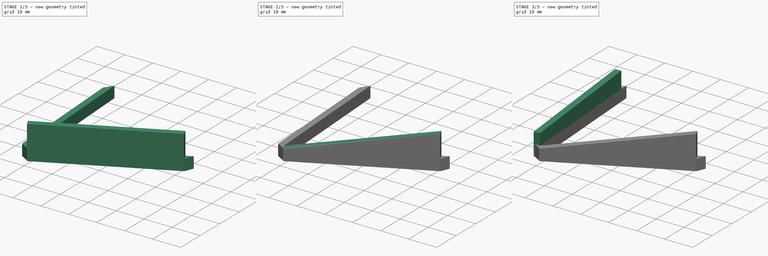
[diagram: build sequence overview — one tinted view per stage of 3, left to right]
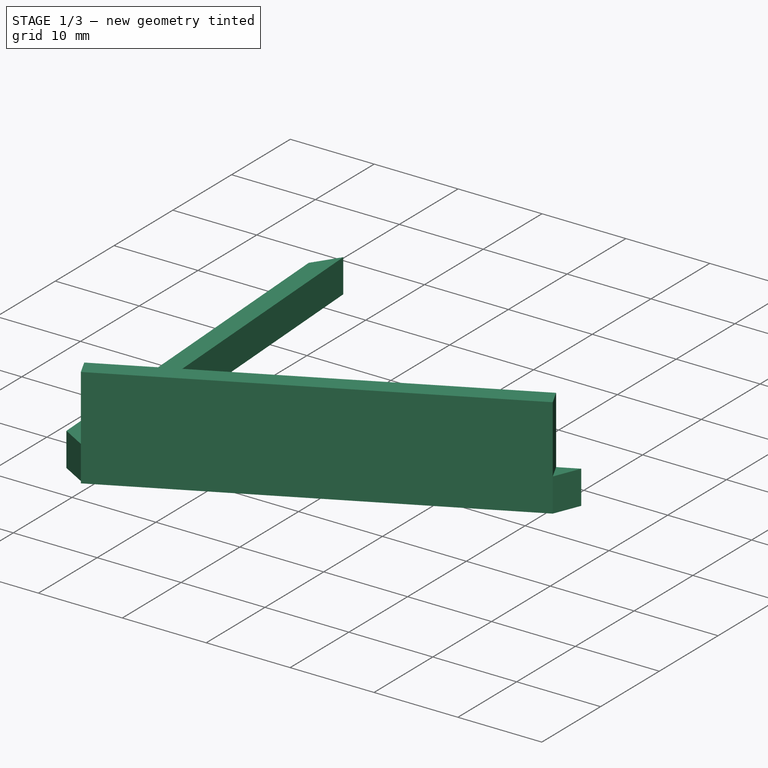
[diagram: stage 1 of 3 — iso view after this stage's code; geometry added in this stage tinted green]
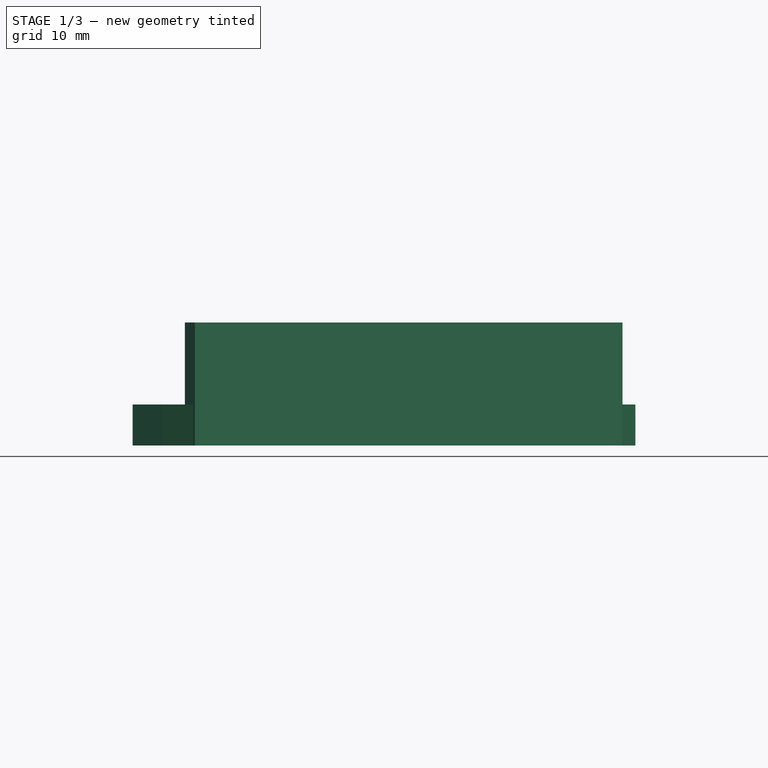
[diagram: stage 1 of 3 — front view after this stage's code; geometry added in this stage tinted green]
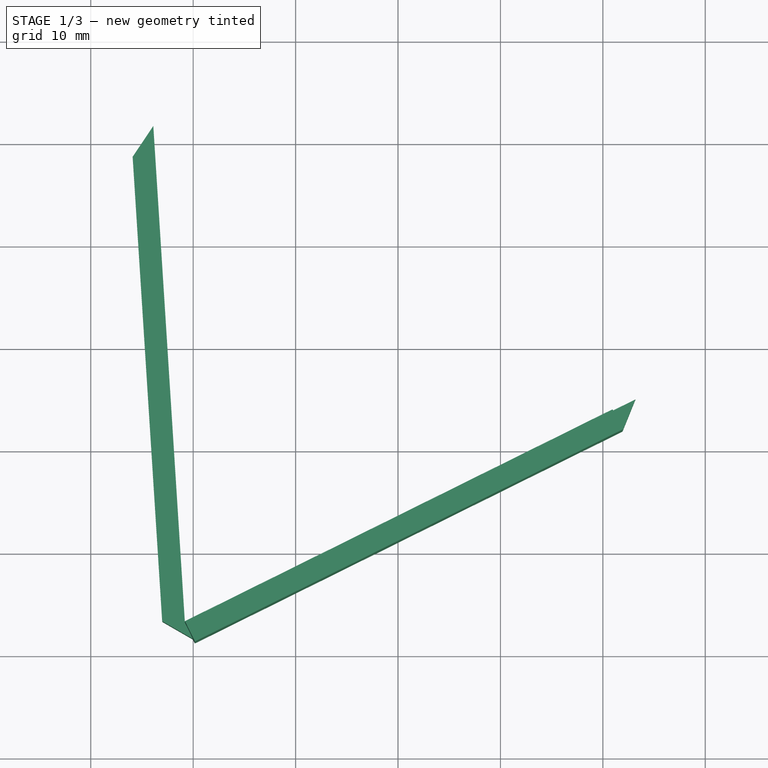
[diagram: stage 1 of 3 — top view after this stage's code; geometry added in this stage tinted green]
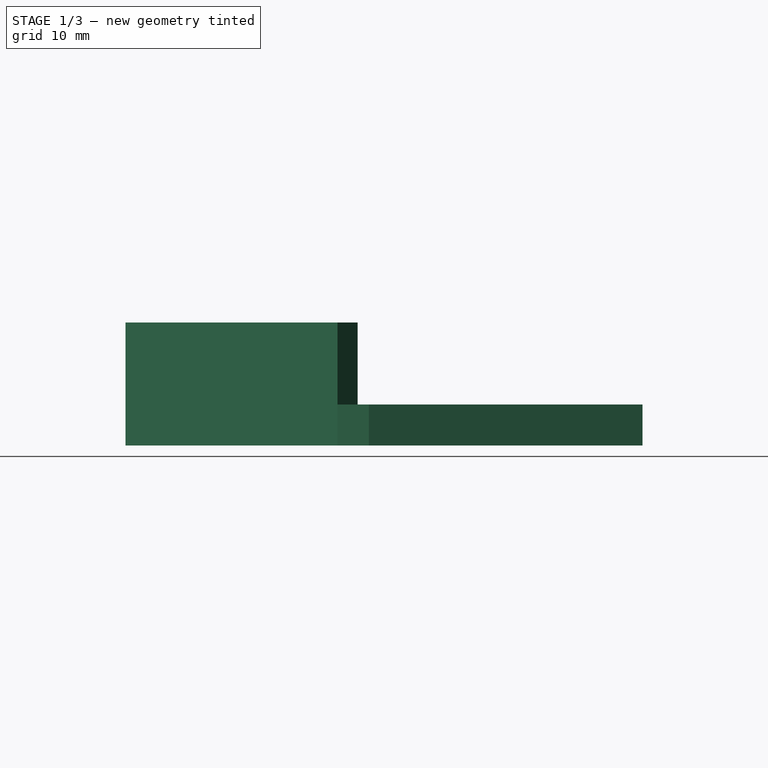
[diagram: stage 1 of 3 — right view after this stage's code; geometry added in this stage tinted green]
FCSTD DOCUMENT  (FreeCAD 0.20R29410 (Git))
Label: wheel_gear_outer_wedge
License: All rights reserved
LicenseURL: http://en.wikipedia.org/wiki/All_rights_reserved
objects: Sketcher::SketchObject×5, PartDesign::Pad×3, PartDesign::Pocket×2, Image::ImagePlane×1, PartDesign::Body×1
note: 16 computed .brp shape members not serialized (recipe doc carries the construction recipe); baked Part::Feature solids carry a one-line shape summary decoded from their .brp

FEATURE [Sketcher::SketchObject] Sketch
  FullyConstrained = true
  MapMode = 5
  Support = -> [XY_Plane]
  sketch-geometry (54):
    g0: LineSegment StartX=65.4968 StartY=-54.9583 StartZ=0 EndX=85.5 EndY=-1.279e-13 EndZ=0
    g1: LineSegment StartX=85.5 StartY=-1.279e-13 StartZ=0 EndX=65.4968 EndY=54.9583 EndZ=0
    g2: LineSegment StartX=65.4968 StartY=54.9583 StartZ=0 EndX=14.8469 EndY=84.2011 EndZ=0
    g3: LineSegment StartX=14.8469 StartY=84.2011 StartZ=0 EndX=-42.75 EndY=74.0452 EndZ=0
    g4: LineSegment StartX=-42.75 StartY=74.0452 StartZ=0 EndX=-80.3437 EndY=29.2427 EndZ=0
    g5: LineSegment StartX=-80.3437 StartY=29.2427 StartZ=0 EndX=-80.3437 EndY=-29.2427 EndZ=0
    g6: LineSegment StartX=-80.3437 StartY=-29.2427 StartZ=0 EndX=-42.75 EndY=-74.0452 EndZ=0
    g7: LineSegment StartX=-42.75 StartY=-74.0452 StartZ=0 EndX=14.8469 EndY=-84.2011 EndZ=0
    g8: LineSegment StartX=14.8469 StartY=-84.2011 StartZ=0 EndX=65.4968 EndY=-54.9583 EndZ=0
    g9: Circle CenterX=0 CenterY=0 CenterZ=0 NormalX=0 NormalY=0 NormalZ=1 AngleXU=0 Radius=85.5
    g10: LineSegment StartX=22.1582 StartY=-3.90708 StartZ=0 EndX=22.1582 EndY=3.90708 EndZ=0
    g11: LineSegment StartX=22.1582 StartY=3.90708 StartZ=0 EndX=19.4856 EndY=11.25 EndZ=0
    g12: LineSegment StartX=19.4856 StartY=11.25 StartZ=0 EndX=14.4627 EndY=17.236 EndZ=0
    g13: LineSegment StartX=14.4627 StartY=17.236 StartZ=0 EndX=7.69545 EndY=21.1431 EndZ=0
    g14: LineSegment StartX=7.69545 StartY=21.1431 StartZ=0 EndX=-5.95e-14 EndY=22.5 EndZ=0
    g15: LineSegment StartX=-5.95e-14 StartY=22.5 StartZ=0 EndX=-7.69545 EndY=21.1431 EndZ=0
    g16: LineSegment StartX=-7.69545 StartY=21.1431 StartZ=0 EndX=-14.4627 EndY=17.236 EndZ=0
    g17: LineSegment StartX=-14.4627 StartY=17.236 StartZ=0 EndX=-19.4856 EndY=11.25 EndZ=0
    g18: LineSegment StartX=-19.4856 StartY=11.25 StartZ=0 EndX=-22.1582 EndY=3.90708 EndZ=0
    g19: LineSegment StartX=-22.1582 StartY=3.90708 StartZ=0 EndX=-22.1582 EndY=-3.90708 EndZ=0
    g20: LineSegment StartX=-22.1582 StartY=-3.90708 StartZ=0 EndX=-19.4856 EndY=-11.25 EndZ=0
    g21: LineSegment StartX=-19.4856 StartY=-11.25 StartZ=0 EndX=-14.4627 EndY=-17.236 EndZ=0
    g22: LineSegment StartX=-14.4627 StartY=-17.236 StartZ=0 EndX=-7.69545 EndY=-21.1431 EndZ=0
    g23: LineSegment StartX=-7.69545 StartY=-21.1431 StartZ=0 EndX=1.33e-14 EndY=-22.5 EndZ=0
    g24: LineSegment StartX=1.29e-14 StartY=-22.5 StartZ=0 EndX=7.69545 EndY=-21.1431 EndZ=0
    g25: LineSegment StartX=7.69545 StartY=-21.1431 StartZ=0 EndX=14.4627 EndY=-17.236 EndZ=0
    g26: LineSegment StartX=14.4627 StartY=-17.236 StartZ=0 EndX=19.4856 EndY=-11.25 EndZ=0
    g27: LineSegment StartX=19.4856 StartY=-11.25 StartZ=0 EndX=22.1582 EndY=-3.90708 EndZ=0
    g28: Circle CenterX=0 CenterY=0 CenterZ=0 NormalX=0 NormalY=0 NormalZ=1 AngleXU=0 Radius=22.5
    g29: LineSegment StartX=14.4627 StartY=17.236 StartZ=0 EndX=85.5 EndY=-1.279e-13 EndZ=0
    g30: LineSegment StartX=14.8469 StartY=84.2011 StartZ=0 EndX=19.4856 EndY=11.25 EndZ=0
    g31: LineSegment StartX=22.1582 StartY=3.90708 StartZ=0 EndX=65.4968 EndY=-54.9583 EndZ=0
    g32: LineSegment StartX=22.1582 StartY=-3.90708 StartZ=0 EndX=65.4968 EndY=54.9583 EndZ=0
    g33: LineSegment StartX=-5.95e-14 StartY=22.5 StartZ=0 EndX=65.4968 EndY=54.9583 EndZ=0
    g34: LineSegment StartX=-42.75 StartY=74.0452 StartZ=0 EndX=7.69545 EndY=21.1431 EndZ=0
    g35: LineSegment StartX=14.4627 StartY=-17.236 StartZ=0 EndX=85.5 EndY=-1.279e-13 EndZ=0
    g36: LineSegment StartX=19.4856 StartY=-11.25 StartZ=0 EndX=14.8469 EndY=-84.2011 EndZ=0
    g37: LineSegment StartX=7.69545 StartY=-21.1431 StartZ=0 EndX=-42.75 EndY=-74.0452 EndZ=0
    g38: LineSegment StartX=1.29e-14 StartY=-22.5 StartZ=0 EndX=65.4968 EndY=-54.9583 EndZ=0
    g39: LineSegment StartX=-7.69545 StartY=-21.1431 StartZ=0 EndX=-80.3437 EndY=-29.2427 EndZ=0
    g40: LineSegment StartX=-14.4627 StartY=-17.236 StartZ=0 EndX=14.8469 EndY=-84.2011 EndZ=0
    g41: LineSegment StartX=-14.4627 StartY=17.236 StartZ=0 EndX=14.8469 EndY=84.2011 EndZ=0
    g42: LineSegment StartX=-7.69545 StartY=21.1431 StartZ=0 EndX=-80.3437 EndY=29.2427 EndZ=0
    g43: LineSegment StartX=-22.1582 StartY=3.90708 StartZ=0 EndX=-42.75 EndY=74.0452 EndZ=0
    g44: LineSegment StartX=-19.4856 StartY=-11.25 StartZ=0 EndX=-80.3437 EndY=29.2427 EndZ=0
    g45: LineSegment StartX=-22.1582 StartY=-3.90708 StartZ=0 EndX=-42.75 EndY=-74.0452 EndZ=0
    g46: LineSegment StartX=-19.4856 StartY=11.25 StartZ=0 EndX=-80.3437 EndY=-29.2427 EndZ=0
    g47: LineSegment StartX=19.1897 StartY=33.2375 StartZ=0 EndX=63.1687 EndY=55.0323 EndZ=0
    g48: LineSegment StartX=16.1055 StartY=81.7424 StartZ=0 EndX=19.1897 EndY=33.2375 EndZ=0
    g49: LineSegment StartX=16.9769 StartY=33.3686 StartZ=0 EndX=14.0922 EndY=78.7357 EndZ=0
    g50: LineSegment StartX=20.4096 StartY=31.3867 StartZ=0 EndX=61.9231 EndY=51.9597 EndZ=0
    g51: LineSegment StartX=16.9769 StartY=33.3686 StartZ=0 EndX=20.4096 EndY=31.3867 EndZ=0
    g52: LineSegment StartX=14.0922 StartY=78.7357 StartZ=0 EndX=16.1055 EndY=81.7424 EndZ=0
    g53: LineSegment StartX=63.1687 StartY=55.0323 StartZ=0 EndX=61.9231 EndY=51.9597 EndZ=0
  constraints (119):
    c: Coincident(g0,g1)
    c: Coincident(g1,g2)
    c: Coincident(g2,g3)
    c: Coincident(g3,g4)
    c: Coincident(g4,g5)
    c: Coincident(g5,g6)
    c: Coincident(g6,g7)
    c: Coincident(g7,g8)
    c: Coincident(g8,g0)
    c: Equal(g0, g1-g8) x8
    c: PointOnObject(g0,g9)
    c: PointOnObject(g1,g9)
    c: PointOnObject(g2,g9)
    c: PointOnObject(g3,g9)
    c: PointOnObject(g4,g9)
    c: PointOnObject(g5,g9)
    c: PointOnObject(g6,g9)
    c: PointOnObject(g7,g9)
    c: PointOnObject(g8,g9)
    c: Radius(g9) = 85.5
    c: Coincident(g9,g-1)
    c: Vertical(g5)
    c: Coincident(g10,g11)
    c: Coincident(g11,g12)
    c: Coincident(g12,g13)
    c: Coincident(g13,g14)
    c: Coincident(g14,g15)
    c: Coincident(g15,g16)
    c: Coincident(g16,g17)
    c: Coincident(g17,g18)
    c: Coincident(g18,g19)
    c: Coincident(g19,g20)
    c: Coincident(g20,g21)
    c: Coincident(g21,g22)
    c: Coincident(g22,g23)
    c: Coincident(g23,g24)
    c: Coincident(g24,g25)
    c: Coincident(g25,g26)
    c: Coincident(g26,g27)
    c: Coincident(g27,g10)
    c: Equal(g10, g11-g27) x17
    c: PointOnObject(g10,g28)
    c: PointOnObject(g11,g28)
    c: PointOnObject(g12,g28)
    c: PointOnObject(g13,g28)
    c: PointOnObject(g14,g28)
    c: PointOnObject(g15,g28)
    c: PointOnObject(g16,g28)
    c: PointOnObject(g17,g28)
    c: PointOnObject(g18,g28)
    c: PointOnObject(g19,g28)
    c: PointOnObject(g20,g28)
    c: PointOnObject(g21,g28)
    c: PointOnObject(g22,g28)
    c: PointOnObject(g23,g28)
    c: PointOnObject(g24,g28)
    c: PointOnObject(g25,g28)
    c: PointOnObject(g26,g28)
    c: PointOnObject(g27,g28)
    c: Coincident(g28,g9)
    c: Radius(g28) = 22.5
    c: Vertical(g19)
    c: Coincident(g33,g14)
    c: Coincident(g34,g13)
    c: Coincident(g29,g12)
    c: Coincident(g30,g11)
    c: Coincident(g31,g10)
    c: Coincident(g10,g32)
    c: Coincident(g25,g35)
    c: Coincident(g36,g26)
    c: Coincident(g36,g7)
    c: Coincident(g31,g0)
    c: Coincident(g29,g0)
    c: Coincident(g35,g0)
    c: Coincident(g33,g1)
    c: Coincident(g32,g1)
    c: Coincident(g30,g2)
    c: Coincident(g34,g3)
    c: Coincident(g38,g0)
    c: Coincident(g38,g23)
    c: Coincident(g37,g24)
    c: Coincident(g37,g6)
    c: Coincident(g40,g7)
    c: Coincident(g40,g21)
    c: Coincident(g39,g22)
    c: Coincident(g39,g5)
    c: Coincident(g45,g6)
    c: Coincident(g45,g19)
    c: Coincident(g44,g20)
    c: Coincident(g42,g4)
    c: Coincident(g44,g4)
    c: Coincident(g46,g5)
    c: Coincident(g43,g18)
    c: Coincident(g46,g17)
    c: Coincident(g41,g16)
    c: Coincident(g42,g15)
    c: Coincident(g41,g2)
    c: Coincident(g43,g3)
    c: Coincident(g48,g47)
    c: Parallel(g48,g30)
    c: Parallel(g47,g33)
    c: Distance(g48,g2) = 1.5
    c: Distance(g47,g30) = 1.1
    c: Distance(g47,g33) = 1.1
    c: Parallel(g49,g30)
    c: Distance(g49,g41) = 1.5
    c: Distance(g49,g30) = 1.1
    c: Parallel(g50,g33)
    c: Distance(g50,g33) = 1.1
    c: Distance(g50,g32) = 1.1
    c: Coincident(g51,g49)
    c: Coincident(g51,g50)
    c: Coincident(g52,g48)
    c: Coincident(g52,g49)
    c: Coincident(g53,g47)
    c: Coincident(g53,g50)
    c: Distance(g47,g2) = 1.1
    c: Distance(g50,g48) = 1.1
    c: Distance(g49,g47) = 1.1
FEATURE [Image::ImagePlane] ImagePlane
  Placement = pos=(-6,-7,0) rot=(0,0,1;0rad)
  XSize = 210.028
  YSize = 373.384
FEATURE [PartDesign::Pad] Pad001
  Direction = (0,0,1)
  Length = 4
  Length2 = 10
  Profile = -> Sketch
  ReferenceAxis = -> Sketch [N_Axis]
  Type = 0
FEATURE [Sketcher::SketchObject] Sketch001
  FullyConstrained = true
  MapMode = 5
  Support = -> [XY_Plane]
  sketch-geometry (51):
    g0: LineSegment StartX=65.4968 StartY=-54.9583 StartZ=0 EndX=85.5 EndY=0 EndZ=0
    g1: LineSegment StartX=85.5 StartY=0 StartZ=0 EndX=65.4968 EndY=54.9583 EndZ=0
    g2: LineSegment StartX=65.4968 StartY=54.9583 StartZ=0 EndX=14.8469 EndY=84.2011 EndZ=0
    g3: LineSegment StartX=14.8469 StartY=84.2011 StartZ=0 EndX=-42.75 EndY=74.0452 EndZ=0
    g4: LineSegment StartX=-42.75 StartY=74.0452 StartZ=0 EndX=-80.3437 EndY=29.2427 EndZ=0
    g5: LineSegment StartX=-80.3437 StartY=29.2427 StartZ=0 EndX=-80.3437 EndY=-29.2427 EndZ=0
    g6: LineSegment StartX=-80.3437 StartY=-29.2427 StartZ=0 EndX=-42.75 EndY=-74.0452 EndZ=0
    g7: LineSegment StartX=-42.75 StartY=-74.0452 StartZ=0 EndX=14.8469 EndY=-84.2011 EndZ=0
    g8: LineSegment StartX=14.8469 StartY=-84.2011 StartZ=0 EndX=65.4968 EndY=-54.9583 EndZ=0
    g9: Circle CenterX=0 CenterY=0 CenterZ=0 NormalX=0 NormalY=0 NormalZ=1 AngleXU=0 Radius=85.5
    g10: LineSegment StartX=22.1582 StartY=-3.90708 StartZ=0 EndX=22.1582 EndY=3.90708 EndZ=0
    g11: LineSegment StartX=22.1582 StartY=3.90708 StartZ=0 EndX=19.4856 EndY=11.25 EndZ=0
    g12: LineSegment StartX=19.4856 StartY=11.25 StartZ=0 EndX=14.4627 EndY=17.236 EndZ=0
    g13: LineSegment StartX=14.4627 StartY=17.236 StartZ=0 EndX=7.69545 EndY=21.1431 EndZ=0
    g14: LineSegment StartX=7.69545 StartY=21.1431 StartZ=0 EndX=-1.8e-15 EndY=22.5 EndZ=0
    g15: LineSegment StartX=-1.9e-15 StartY=22.5 StartZ=0 EndX=-7.69545 EndY=21.1431 EndZ=0
    g16: LineSegment StartX=-7.69545 StartY=21.1431 StartZ=0 EndX=-14.4627 EndY=17.236 EndZ=0
    g17: LineSegment StartX=-14.4627 StartY=17.236 StartZ=0 EndX=-19.4856 EndY=11.25 EndZ=0
    g18: LineSegment StartX=-19.4856 StartY=11.25 StartZ=0 EndX=-22.1582 EndY=3.90708 EndZ=0
    g19: LineSegment StartX=-22.1582 StartY=3.90708 StartZ=0 EndX=-22.1582 EndY=-3.90708 EndZ=0
    g20: LineSegment StartX=-22.1582 StartY=-3.90708 StartZ=0 EndX=-19.4856 EndY=-11.25 EndZ=0
    g21: LineSegment StartX=-19.4856 StartY=-11.25 StartZ=0 EndX=-14.4627 EndY=-17.236 EndZ=0
    g22: LineSegment StartX=-14.4627 StartY=-17.236 StartZ=0 EndX=-7.69545 EndY=-21.1431 EndZ=0
    g23: LineSegment StartX=-7.69545 StartY=-21.1431 StartZ=0 EndX=9e-16 EndY=-22.5 EndZ=0
    g24: LineSegment StartX=9e-16 StartY=-22.5 StartZ=0 EndX=7.69545 EndY=-21.1431 EndZ=0
    g25: LineSegment StartX=7.69545 StartY=-21.1431 StartZ=0 EndX=14.4627 EndY=-17.236 EndZ=0
    g26: LineSegment StartX=14.4627 StartY=-17.236 StartZ=0 EndX=19.4856 EndY=-11.25 EndZ=0
    g27: LineSegment StartX=19.4856 StartY=-11.25 StartZ=0 EndX=22.1582 EndY=-3.90708 EndZ=0
    g28: Circle CenterX=0 CenterY=0 CenterZ=0 NormalX=0 NormalY=0 NormalZ=1 AngleXU=0 Radius=22.5
    g29: LineSegment StartX=14.4627 StartY=17.236 StartZ=0 EndX=85.5 EndY=0 EndZ=0
    g30: LineSegment StartX=14.8469 StartY=84.2011 StartZ=0 EndX=19.4856 EndY=11.25 EndZ=0
    g31: LineSegment StartX=22.1582 StartY=3.90708 StartZ=0 EndX=65.4968 EndY=-54.9583 EndZ=0
    g32: LineSegment StartX=22.1582 StartY=-3.90708 StartZ=0 EndX=65.4968 EndY=54.9583 EndZ=0
    g33: LineSegment StartX=-1.9e-15 StartY=22.5 StartZ=0 EndX=65.4968 EndY=54.9583 EndZ=0
    g34: LineSegment StartX=-42.75 StartY=74.0452 StartZ=0 EndX=7.69545 EndY=21.1431 EndZ=0
    g35: LineSegment StartX=14.4627 StartY=-17.236 StartZ=0 EndX=85.5 EndY=0 EndZ=0
    g36: LineSegment StartX=19.4856 StartY=-11.25 StartZ=0 EndX=14.8469 EndY=-84.2011 EndZ=0
    g37: LineSegment StartX=7.69545 StartY=-21.1431 StartZ=0 EndX=-42.75 EndY=-74.0452 EndZ=0
    g38: LineSegment StartX=9e-16 StartY=-22.5 StartZ=0 EndX=65.4968 EndY=-54.9583 EndZ=0
    g39: LineSegment StartX=-7.69545 StartY=-21.1431 StartZ=0 EndX=-80.3437 EndY=-29.2427 EndZ=0
    g40: LineSegment StartX=-14.4627 StartY=-17.236 StartZ=0 EndX=14.8469 EndY=-84.2011 EndZ=0
    g41: LineSegment StartX=-14.4627 StartY=17.236 StartZ=0 EndX=14.8469 EndY=84.2011 EndZ=0
    g42: LineSegment StartX=-7.69545 StartY=21.1431 StartZ=0 EndX=-80.3437 EndY=29.2427 EndZ=0
    g43: LineSegment StartX=-22.1582 StartY=3.90708 StartZ=0 EndX=-42.75 EndY=74.0452 EndZ=0
    g44: LineSegment StartX=-19.4856 StartY=-11.25 StartZ=0 EndX=-80.3437 EndY=29.2427 EndZ=0
    g45: LineSegment StartX=-22.1582 StartY=-3.90708 StartZ=0 EndX=-42.75 EndY=-74.0452 EndZ=0
    g46: LineSegment StartX=-19.4856 StartY=11.25 StartZ=0 EndX=-80.3437 EndY=-29.2427 EndZ=0
    g47: LineSegment StartX=19.1897 StartY=33.2375 StartZ=0 EndX=60.9462 EndY=53.9309 EndZ=0
    g48: LineSegment StartX=20.1666 StartY=31.2663 StartZ=0 EndX=61.9231 EndY=51.9597 EndZ=0
    g49: LineSegment StartX=60.9462 StartY=53.9309 StartZ=0 EndX=61.9231 EndY=51.9597 EndZ=0
    g50: LineSegment StartX=20.1666 StartY=31.2663 StartZ=0 EndX=19.1897 EndY=33.2375 EndZ=0
  constraints (110):
    c: Coincident(g0,g1)
    c: Coincident(g1,g2)
    c: Coincident(g2,g3)
    c: Coincident(g3,g4)
    c: Coincident(g4,g5)
    c: Coincident(g5,g6)
    c: Coincident(g6,g7)
    c: Coincident(g7,g8)
    c: Coincident(g8,g0)
    c: Equal(g0, g1-g8) x8
    c: PointOnObject(g0,g9)
    c: PointOnObject(g1,g9)
    c: PointOnObject(g2,g9)
    c: PointOnObject(g3,g9)
    c: PointOnObject(g4,g9)
    c: PointOnObject(g5,g9)
    c: PointOnObject(g6,g9)
    c: PointOnObject(g7,g9)
    c: PointOnObject(g8,g9)
    c: Radius(g9) = 85.5
    c: Coincident(g9,g-1)
    c: Vertical(g5)
    c: Coincident(g10,g11)
    c: Coincident(g11,g12)
    c: Coincident(g12,g13)
    c: Coincident(g13,g14)
    c: Coincident(g14,g15)
    c: Coincident(g15,g16)
    c: Coincident(g16,g17)
    c: Coincident(g17,g18)
    c: Coincident(g18,g19)
    c: Coincident(g19,g20)
    c: Coincident(g20,g21)
    c: Coincident(g21,g22)
    c: Coincident(g22,g23)
    c: Coincident(g23,g24)
    c: Coincident(g24,g25)
    c: Coincident(g25,g26)
    c: Coincident(g26,g27)
    c: Coincident(g27,g10)
    c: Equal(g10, g11-g27) x17
    c: PointOnObject(g10,g28)
    c: PointOnObject(g11,g28)
    c: PointOnObject(g12,g28)
    c: PointOnObject(g13,g28)
    c: PointOnObject(g14,g28)
    c: PointOnObject(g15,g28)
    c: PointOnObject(g16,g28)
    c: PointOnObject(g17,g28)
    c: PointOnObject(g18,g28)
    c: PointOnObject(g19,g28)
    c: PointOnObject(g20,g28)
    c: PointOnObject(g21,g28)
    c: PointOnObject(g22,g28)
    c: PointOnObject(g23,g28)
    c: PointOnObject(g24,g28)
    c: PointOnObject(g25,g28)
    c: PointOnObject(g26,g28)
    c: PointOnObject(g27,g28)
    c: Coincident(g28,g9)
    c: Radius(g28) = 22.5
    c: Vertical(g19)
    c: Coincident(g33,g14)
    c: Coincident(g34,g13)
    c: Coincident(g29,g12)
    c: Coincident(g30,g11)
    c: Coincident(g31,g10)
    c: Coincident(g10,g32)
    c: Coincident(g25,g35)
    c: Coincident(g36,g26)
    c: Coincident(g36,g7)
    c: Coincident(g31,g0)
    c: Coincident(g29,g0)
    c: Coincident(g35,g0)
    c: Coincident(g33,g1)
    c: Coincident(g32,g1)
    c: Coincident(g30,g2)
    c: Coincident(g34,g3)
    c: Coincident(g38,g0)
    c: Coincident(g38,g23)
    c: Coincident(g37,g24)
    c: Coincident(g37,g6)
    c: Coincident(g40,g7)
    c: Coincident(g40,g21)
    c: Coincident(g39,g22)
    c: Coincident(g39,g5)
    c: Coincident(g45,g6)
    c: Coincident(g45,g19)
    c: Coincident(g44,g20)
    c: Coincident(g42,g4)
    c: Coincident(g44,g4)
    c: Coincident(g46,g5)
    c: Coincident(g43,g18)
    c: Coincident(g46,g17)
    c: Coincident(g41,g16)
    c: Coincident(g42,g15)
    c: Coincident(g41,g2)
    c: Coincident(g43,g3)
    c: Parallel(g47,g33)
    c: Distance(g47,g30) = 1.1
    c: Distance(g47,g33) = 1.1
    c: Parallel(g48,g33)
    c: Distance(g48,g33) = 1.1
    c: Distance(g48,g32) = 1.1
    c: Coincident(g49,g47)
    c: Coincident(g49,g48)
    c: Coincident(g50,g47)
    c: Coincident(g50,g48)
    c: Angle(g50,g47) = 1.5708
    c: Angle(g49,g48) = 1.5708
FEATURE [PartDesign::Pad] Pad
  BaseFeature = -> Pad001
  Direction = (0,0,1)
  Length = 12
  Length2 = 10
  Profile = -> Sketch001
  ReferenceAxis = -> Sketch001 [N_Axis]
  Type = 0
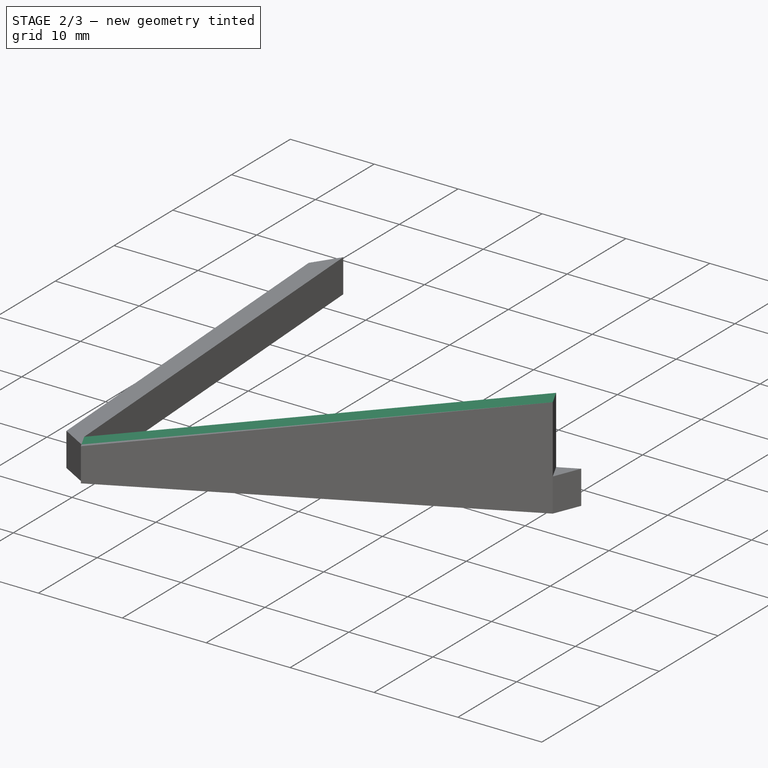
[diagram: stage 2 of 3 — iso view after this stage's code; geometry added in this stage tinted green]
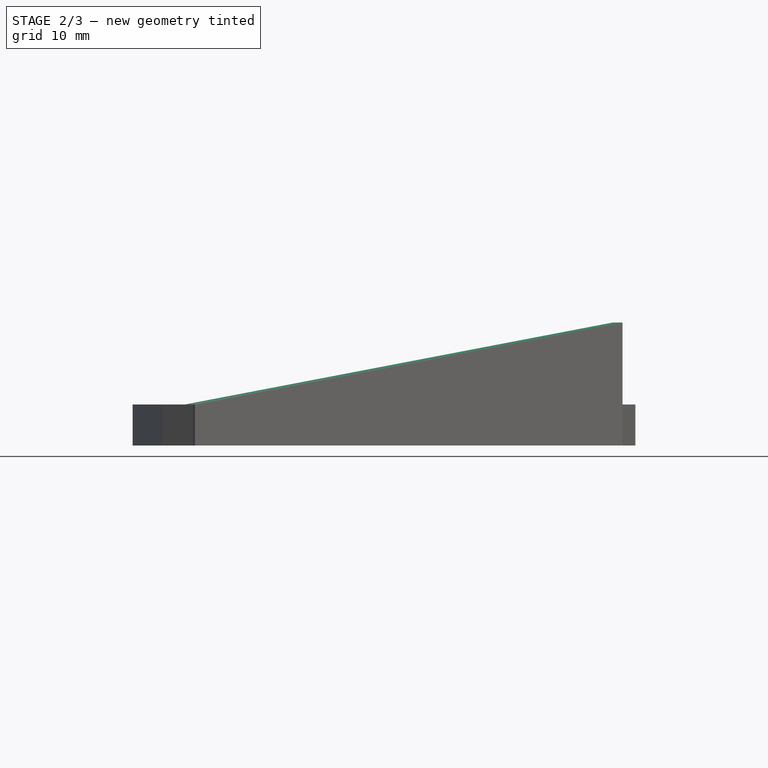
[diagram: stage 2 of 3 — front view after this stage's code; geometry added in this stage tinted green]
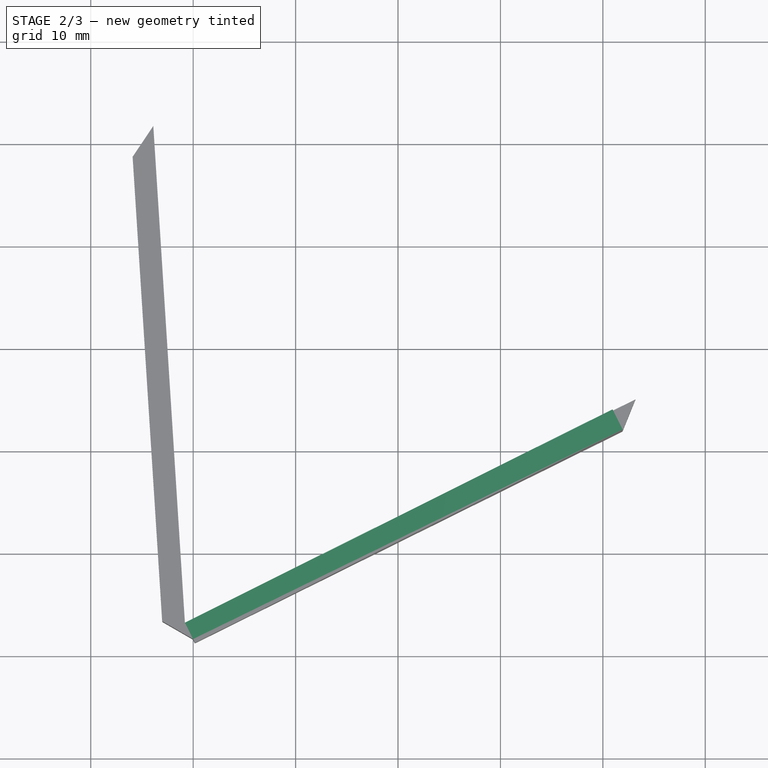
[diagram: stage 2 of 3 — top view after this stage's code; geometry added in this stage tinted green]
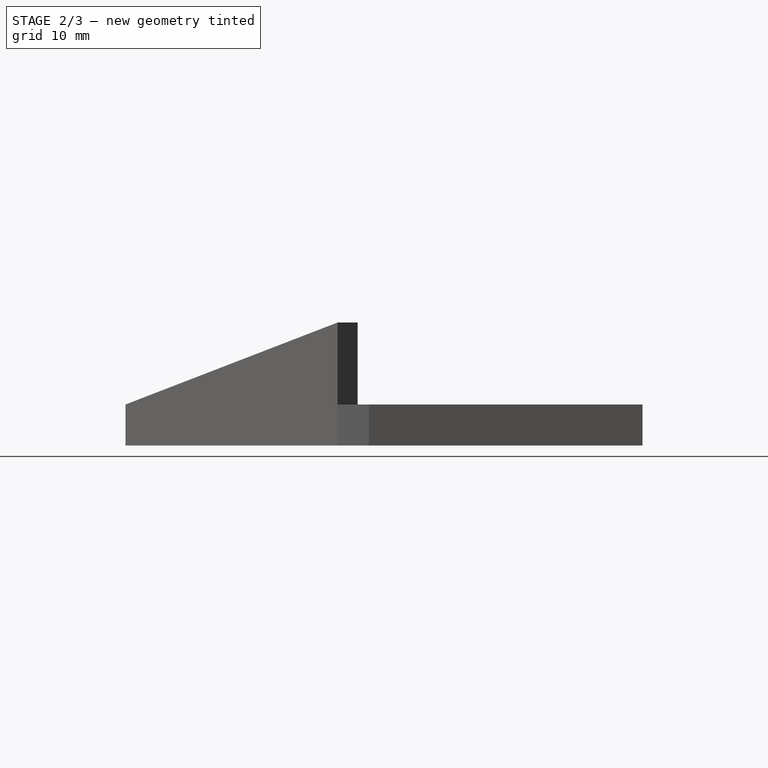
[diagram: stage 2 of 3 — right view after this stage's code; geometry added in this stage tinted green]
FEATURE [Sketcher::SketchObject] Sketch003
  ExternalGeometry = -> [Pad]
  FullyConstrained = true
  MapMode = 5
  Placement = pos=(-9.4403,19.0493,0) rot=(-0.163376,0.697606,0.697606;3.46548rad)
  Support = -> [Pad]
  sketch-geometry (3):
    g0: LineSegment StartX=-78.5556 StartY=12 StartZ=0 EndX=-31.9528 EndY=4 EndZ=0
    g1: LineSegment StartX=-78.5556 StartY=12 StartZ=0 EndX=-31.9528 EndY=12 EndZ=0
    g2: LineSegment StartX=-31.9528 StartY=12 StartZ=0 EndX=-31.9528 EndY=4 EndZ=0
  constraints (6):
    c: Coincident(g0,g-4)
    c: Coincident(g0,g-3)
    c: Coincident(g1,g0)
    c: Coincident(g-4,g1)
    c: Coincident(g2,g1)
    c: Coincident(g2,g0)
FEATURE [PartDesign::Pocket] Pocket
  BaseFeature = -> Pad
  Direction = (0.444036,-0.896009,-1e-16)
  Length = 5
  Length2 = 5
  Profile = -> Sketch003
  ReferenceAxis = -> Sketch003 [N_Axis]
  Type = 0
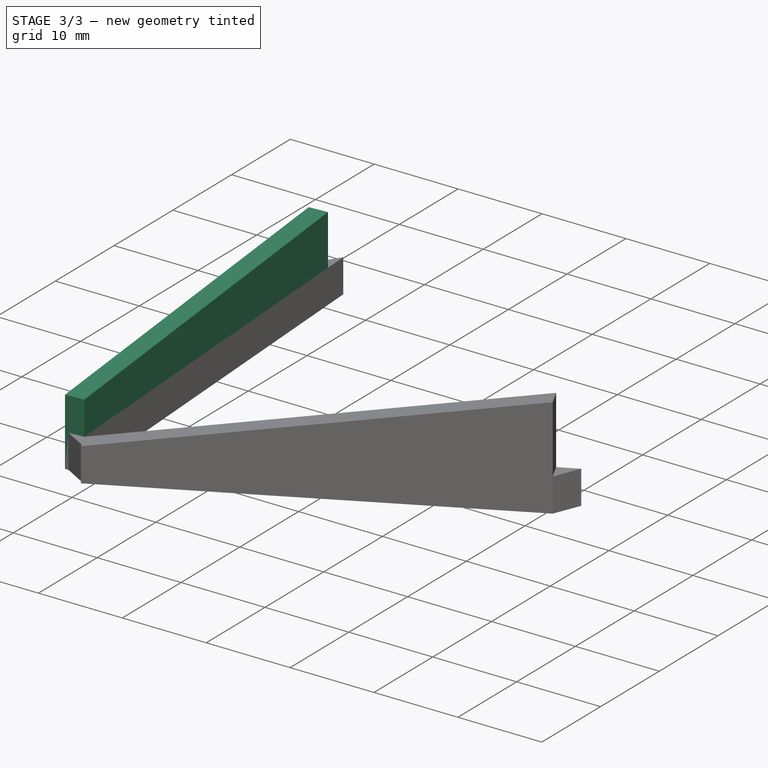
[diagram: stage 3 of 3 — iso view after this stage's code; geometry added in this stage tinted green]
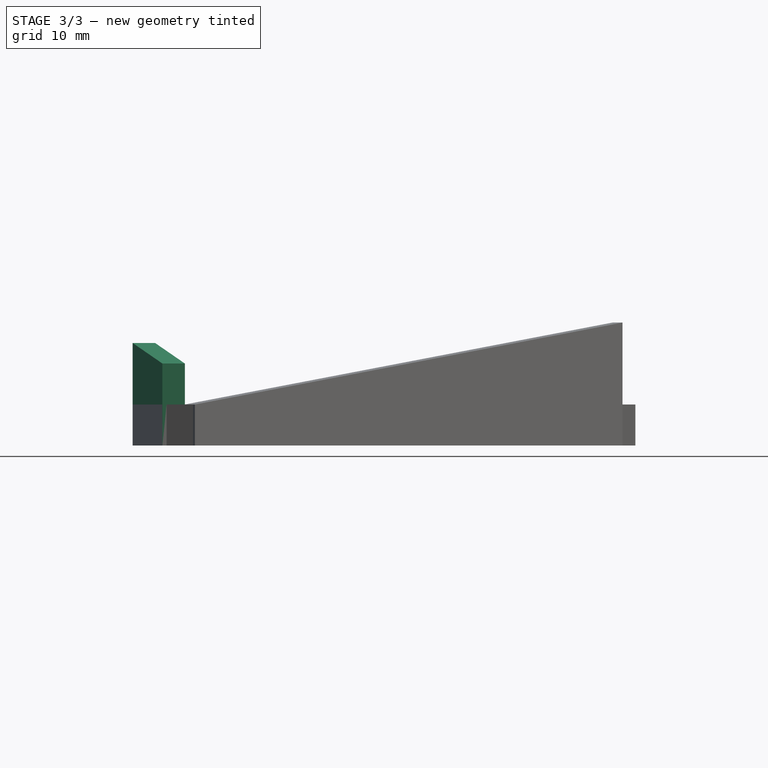
[diagram: stage 3 of 3 — front view after this stage's code; geometry added in this stage tinted green]
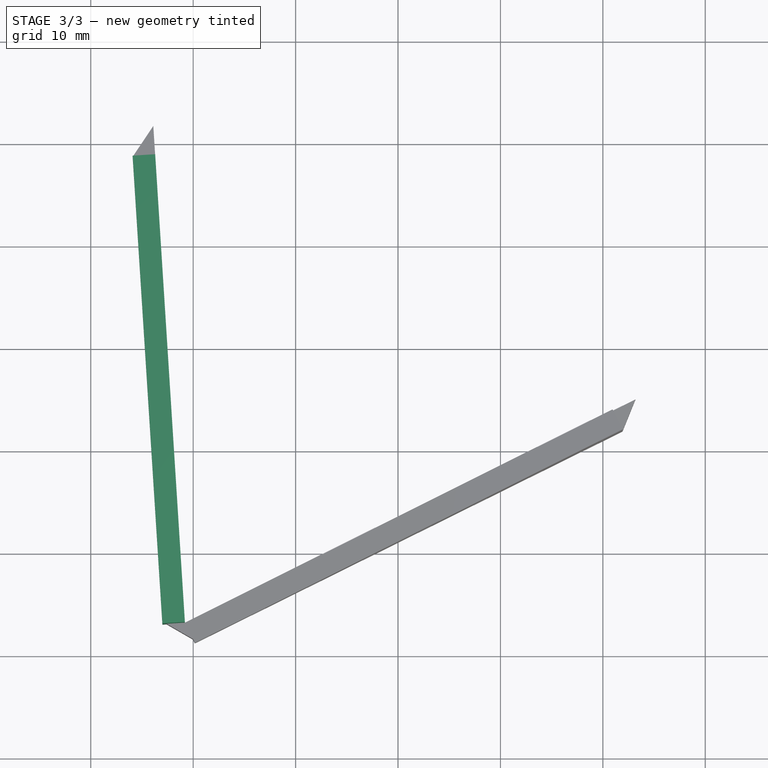
[diagram: stage 3 of 3 — top view after this stage's code; geometry added in this stage tinted green]
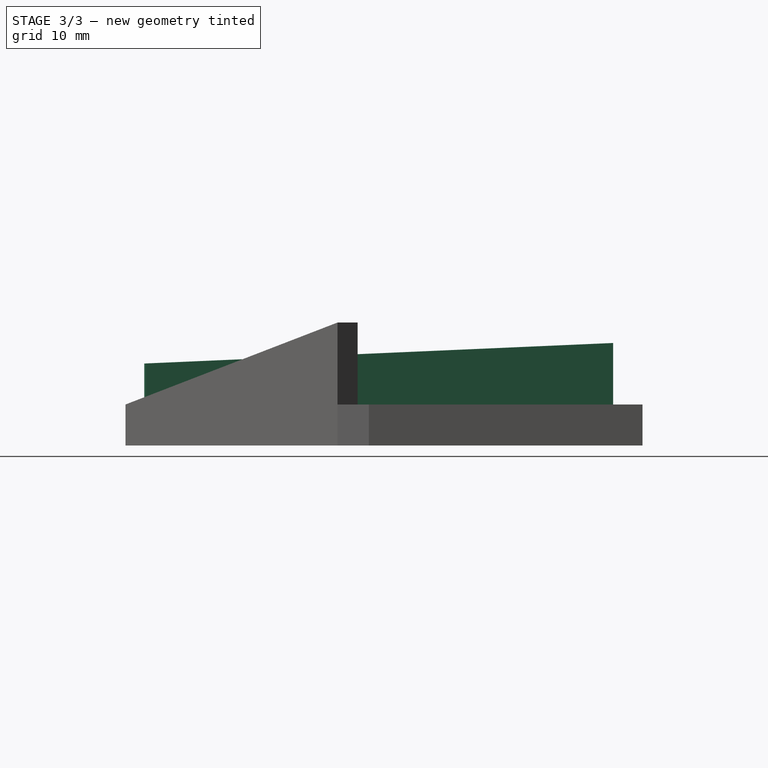
[diagram: stage 3 of 3 — right view after this stage's code; geometry added in this stage tinted green]
FEATURE [Sketcher::SketchObject] Sketch004
  FullyConstrained = true
  MapMode = 5
  Support = -> [XY_Plane]
  sketch-geometry (51):
    g0: LineSegment StartX=65.4968 StartY=-54.9583 StartZ=0 EndX=85.5 EndY=7.1e-15 EndZ=0
    g1: LineSegment StartX=85.5 StartY=1.07e-14 StartZ=0 EndX=65.4968 EndY=54.9583 EndZ=0
    g2: LineSegment StartX=65.4968 StartY=54.9583 StartZ=0 EndX=14.8469 EndY=84.2011 EndZ=0
    g3: LineSegment StartX=14.8469 StartY=84.2011 StartZ=0 EndX=-42.75 EndY=74.0452 EndZ=0
    g4: LineSegment StartX=-42.75 StartY=74.0452 StartZ=0 EndX=-80.3437 EndY=29.2427 EndZ=0
    g5: LineSegment StartX=-80.3437 StartY=29.2427 StartZ=0 EndX=-80.3437 EndY=-29.2427 EndZ=0
    g6: LineSegment StartX=-80.3437 StartY=-29.2427 StartZ=0 EndX=-42.75 EndY=-74.0452 EndZ=0
    g7: LineSegment StartX=-42.75 StartY=-74.0452 StartZ=0 EndX=14.8469 EndY=-84.2011 EndZ=0
    g8: LineSegment StartX=14.8469 StartY=-84.2011 StartZ=0 EndX=65.4968 EndY=-54.9583 EndZ=0
    g9: Circle CenterX=0 CenterY=0 CenterZ=0 NormalX=0 NormalY=0 NormalZ=1 AngleXU=0 Radius=85.5
    g10: LineSegment StartX=22.1582 StartY=-3.90708 StartZ=0 EndX=22.1582 EndY=3.90708 EndZ=0
    g11: LineSegment StartX=22.1582 StartY=3.90708 StartZ=0 EndX=19.4856 EndY=11.25 EndZ=0
    g12: LineSegment StartX=19.4856 StartY=11.25 StartZ=0 EndX=14.4627 EndY=17.236 EndZ=0
    g13: LineSegment StartX=14.4627 StartY=17.236 StartZ=0 EndX=7.69545 EndY=21.1431 EndZ=0
    g14: LineSegment StartX=7.69545 StartY=21.1431 StartZ=0 EndX=1.8e-15 EndY=22.5 EndZ=0
    g15: LineSegment StartX=1.6e-15 StartY=22.5 StartZ=0 EndX=-7.69545 EndY=21.1431 EndZ=0
    g16: LineSegment StartX=-7.69545 StartY=21.1431 StartZ=0 EndX=-14.4627 EndY=17.236 EndZ=0
    g17: LineSegment StartX=-14.4627 StartY=17.236 StartZ=0 EndX=-19.4856 EndY=11.25 EndZ=0
    g18: LineSegment StartX=-19.4856 StartY=11.25 StartZ=0 EndX=-22.1582 EndY=3.90708 EndZ=0
    g19: LineSegment StartX=-22.1582 StartY=3.90708 StartZ=0 EndX=-22.1582 EndY=-3.90708 EndZ=0
    g20: LineSegment StartX=-22.1582 StartY=-3.90708 StartZ=0 EndX=-19.4856 EndY=-11.25 EndZ=0
    g21: LineSegment StartX=-19.4856 StartY=-11.25 StartZ=0 EndX=-14.4627 EndY=-17.236 EndZ=0
    g22: LineSegment StartX=-14.4627 StartY=-17.236 StartZ=0 EndX=-7.69545 EndY=-21.1431 EndZ=0
    g23: LineSegment StartX=-7.69545 StartY=-21.1431 StartZ=0 EndX=-1.8e-15 EndY=-22.5 EndZ=0
    g24: LineSegment StartX=-2.1e-15 StartY=-22.5 StartZ=0 EndX=7.69545 EndY=-21.1431 EndZ=0
    g25: LineSegment StartX=7.69545 StartY=-21.1431 StartZ=0 EndX=14.4627 EndY=-17.236 EndZ=0
    g26: LineSegment StartX=14.4627 StartY=-17.236 StartZ=0 EndX=19.4856 EndY=-11.25 EndZ=0
    g27: LineSegment StartX=19.4856 StartY=-11.25 StartZ=0 EndX=22.1582 EndY=-3.90708 EndZ=0
    g28: Circle CenterX=0 CenterY=0 CenterZ=0 NormalX=0 NormalY=0 NormalZ=1 AngleXU=0 Radius=22.5
    g29: LineSegment StartX=14.4627 StartY=17.236 StartZ=0 EndX=85.5 EndY=1.07e-14 EndZ=0
    g30: LineSegment StartX=14.8469 StartY=84.2011 StartZ=0 EndX=19.4856 EndY=11.25 EndZ=0
    g31: LineSegment StartX=22.1582 StartY=3.90708 StartZ=0 EndX=65.4968 EndY=-54.9583 EndZ=0
    g32: LineSegment StartX=22.1582 StartY=-3.90708 StartZ=0 EndX=65.4968 EndY=54.9583 EndZ=0
    g33: LineSegment StartX=1.6e-15 StartY=22.5 StartZ=0 EndX=65.4968 EndY=54.9583 EndZ=0
    g34: LineSegment StartX=-42.75 StartY=74.0452 StartZ=0 EndX=7.69545 EndY=21.1431 EndZ=0
    g35: LineSegment StartX=14.4627 StartY=-17.236 StartZ=0 EndX=85.5 EndY=1.07e-14 EndZ=0
    g36: LineSegment StartX=19.4856 StartY=-11.25 StartZ=0 EndX=14.8469 EndY=-84.2011 EndZ=0
    g37: LineSegment StartX=7.69545 StartY=-21.1431 StartZ=0 EndX=-42.75 EndY=-74.0452 EndZ=0
    g38: LineSegment StartX=-2.1e-15 StartY=-22.5 StartZ=0 EndX=65.4968 EndY=-54.9583 EndZ=0
    g39: LineSegment StartX=-7.69545 StartY=-21.1431 StartZ=0 EndX=-80.3437 EndY=-29.2427 EndZ=0
    g40: LineSegment StartX=-14.4627 StartY=-17.236 StartZ=0 EndX=14.8469 EndY=-84.2011 EndZ=0
    g41: LineSegment StartX=-14.4627 StartY=17.236 StartZ=0 EndX=14.8469 EndY=84.2011 EndZ=0
    g42: LineSegment StartX=-7.69545 StartY=21.1431 StartZ=0 EndX=-80.3437 EndY=29.2427 EndZ=0
    g43: LineSegment StartX=-22.1582 StartY=3.90708 StartZ=0 EndX=-42.75 EndY=74.0452 EndZ=0
    g44: LineSegment StartX=-19.4856 StartY=-11.25 StartZ=0 EndX=-80.3437 EndY=29.2427 EndZ=0
    g45: LineSegment StartX=-22.1582 StartY=-3.90708 StartZ=0 EndX=-42.75 EndY=-74.0452 EndZ=0
    g46: LineSegment StartX=-19.4856 StartY=11.25 StartZ=0 EndX=-80.3437 EndY=-29.2427 EndZ=0
    g47: LineSegment StartX=16.2878 StartY=78.8754 StartZ=0 EndX=19.1897 EndY=33.2375 EndZ=0
    g48: LineSegment StartX=16.9941 StartY=33.0979 StartZ=0 EndX=14.0922 EndY=78.7357 EndZ=0
    g49: LineSegment StartX=16.9941 StartY=33.0979 StartZ=0 EndX=19.1897 EndY=33.2375 EndZ=0
    g50: LineSegment StartX=14.0922 StartY=78.7357 StartZ=0 EndX=16.2878 EndY=78.8754 EndZ=0
  constraints (110):
    c: Coincident(g0,g1)
    c: Coincident(g1,g2)
    c: Coincident(g2,g3)
    c: Coincident(g3,g4)
    c: Coincident(g4,g5)
    c: Coincident(g5,g6)
    c: Coincident(g6,g7)
    c: Coincident(g7,g8)
    c: Coincident(g8,g0)
    c: Equal(g0, g1-g8) x8
    c: PointOnObject(g0,g9)
    c: PointOnObject(g1,g9)
    c: PointOnObject(g2,g9)
    c: PointOnObject(g3,g9)
    c: PointOnObject(g4,g9)
    c: PointOnObject(g5,g9)
    c: PointOnObject(g6,g9)
    c: PointOnObject(g7,g9)
    c: PointOnObject(g8,g9)
    c: Radius(g9) = 85.5
    c: Coincident(g9,g-1)
    c: Vertical(g5)
    c: Coincident(g10,g11)
    c: Coincident(g11,g12)
    c: Coincident(g12,g13)
    c: Coincident(g13,g14)
    c: Coincident(g14,g15)
    c: Coincident(g15,g16)
    c: Coincident(g16,g17)
    c: Coincident(g17,g18)
    c: Coincident(g18,g19)
    c: Coincident(g19,g20)
    c: Coincident(g20,g21)
    c: Coincident(g21,g22)
    c: Coincident(g22,g23)
    c: Coincident(g23,g24)
    c: Coincident(g24,g25)
    c: Coincident(g25,g26)
    c: Coincident(g26,g27)
    c: Coincident(g27,g10)
    c: Equal(g10, g11-g27) x17
    c: PointOnObject(g10,g28)
    c: PointOnObject(g11,g28)
    c: PointOnObject(g12,g28)
    c: PointOnObject(g13,g28)
    c: PointOnObject(g14,g28)
    c: PointOnObject(g15,g28)
    c: PointOnObject(g16,g28)
    c: PointOnObject(g17,g28)
    c: PointOnObject(g18,g28)
    c: PointOnObject(g19,g28)
    c: PointOnObject(g20,g28)
    c: PointOnObject(g21,g28)
    c: PointOnObject(g22,g28)
    c: PointOnObject(g23,g28)
    c: PointOnObject(g24,g28)
    c: PointOnObject(g25,g28)
    c: PointOnObject(g26,g28)
    c: PointOnObject(g27,g28)
    c: Coincident(g28,g9)
    c: Radius(g28) = 22.5
    c: Vertical(g19)
    c: Coincident(g33,g14)
    c: Coincident(g34,g13)
    c: Coincident(g29,g12)
    c: Coincident(g30,g11)
    c: Coincident(g31,g10)
    c: Coincident(g10,g32)
    c: Coincident(g25,g35)
    c: Coincident(g36,g26)
    c: Coincident(g36,g7)
    c: Coincident(g31,g0)
    c: Coincident(g29,g0)
    c: Coincident(g35,g0)
    c: Coincident(g33,g1)
    c: Coincident(g32,g1)
    c: Coincident(g30,g2)
    c: Coincident(g34,g3)
    c: Coincident(g38,g0)
    c: Coincident(g38,g23)
    c: Coincident(g37,g24)
    c: Coincident(g37,g6)
    c: Coincident(g40,g7)
    c: Coincident(g40,g21)
    c: Coincident(g39,g22)
    c: Coincident(g39,g5)
    c: Coincident(g45,g6)
    c: Coincident(g45,g19)
    c: Coincident(g44,g20)
    c: Coincident(g42,g4)
    c: Coincident(g44,g4)
    c: Coincident(g46,g5)
    c: Coincident(g43,g18)
    c: Coincident(g46,g17)
    c: Coincident(g41,g16)
    c: Coincident(g42,g15)
    c: Coincident(g41,g2)
    c: Coincident(g43,g3)
    c: Parallel(g47,g30)
    c: Distance(g47,g30) = 1.1
    c: Parallel(g48,g30)
    c: Distance(g48,g41) = 1.5
    c: Distance(g48,g30) = 1.1
    c: Coincident(g49,g48)
    c: Coincident(g50,g47)
    c: Coincident(g50,g48)
    c: Distance(g47,g33) = 1.1
    c: Coincident(g49,g47)
    c: Angle(g47,g49) = 1.5708
    c: Angle(g48,g50) = 1.5708
FEATURE [PartDesign::Pad] Pad002
  BaseFeature = -> Pocket
  Direction = (0,0,1)
  Length = 10
  Length2 = 10
  Profile = -> Sketch004
  ReferenceAxis = -> Sketch004 [N_Axis]
  Type = 0
FEATURE [Sketcher::SketchObject] Sketch005
  ExternalGeometry = -> [Pad002]
  FullyConstrained = true
  MapMode = 5
  Placement = pos=(19.0218,1.20952,0) rot=(0.601786,-0.564736,-0.564736;2.05813rad)
  Support = -> [Pad002]
  sketch-geometry (3):
    g0: LineSegment StartX=-31.9528 StartY=10 StartZ=0 EndX=-31.9528 EndY=8 EndZ=0
    g1: LineSegment StartX=-77.6828 StartY=10 StartZ=0 EndX=-31.9528 EndY=10 EndZ=0
    g2: LineSegment StartX=-77.6828 StartY=10 StartZ=0 EndX=-31.9528 EndY=8 EndZ=0
  constraints (7):
    c: Coincident(g1,g-3)
    c: Coincident(g1,g-4)
    c: Coincident(g0,g1)
    c: Angle(g1,g0) = 1.5708
    c: Distance(g0,g-4) = 8
    c: Coincident(g2,g1)
    c: Coincident(g0,g2)
FEATURE [PartDesign::Pocket] Pocket001
  BaseFeature = -> Pad002
  Direction = (0.997985,0.0634577,-1e-16)
  Length = 5
  Length2 = 5
  Profile = -> Sketch005
  ReferenceAxis = -> Sketch005 [N_Axis]
  Type = 0
FEATURE [PartDesign::Body] Body
  Group = -> [Sketch,Pad001,Sketch001,Pad,Sketch003,Pocket,Sketch004,Pad002,Sketch005,Pocket001]
  Origin = -> Origin
  Tip = -> Pocket001
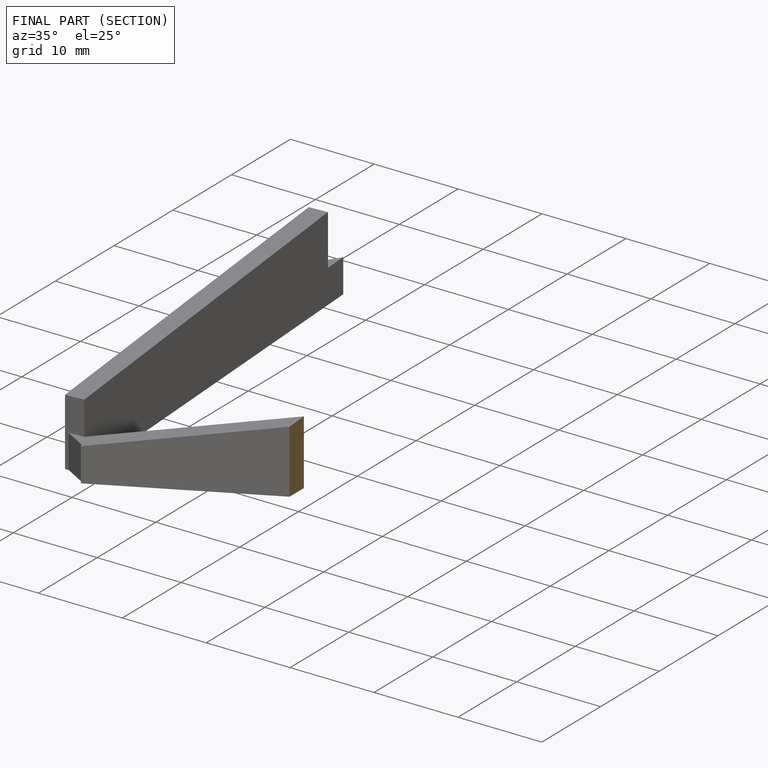
[diagram: finished part — half-section view (interior)]
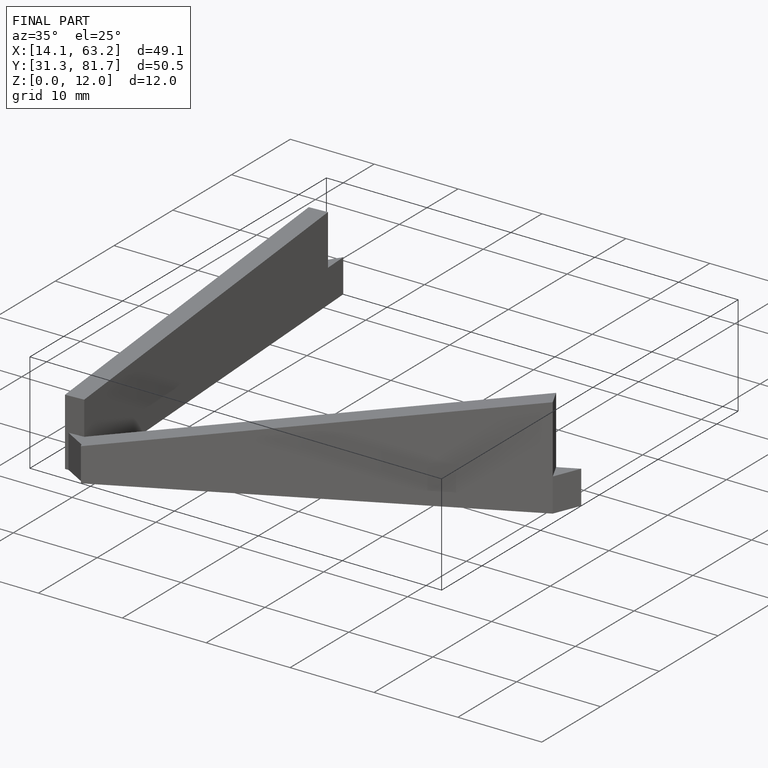
[diagram: finished part — iso view with bounding-box wireframe]
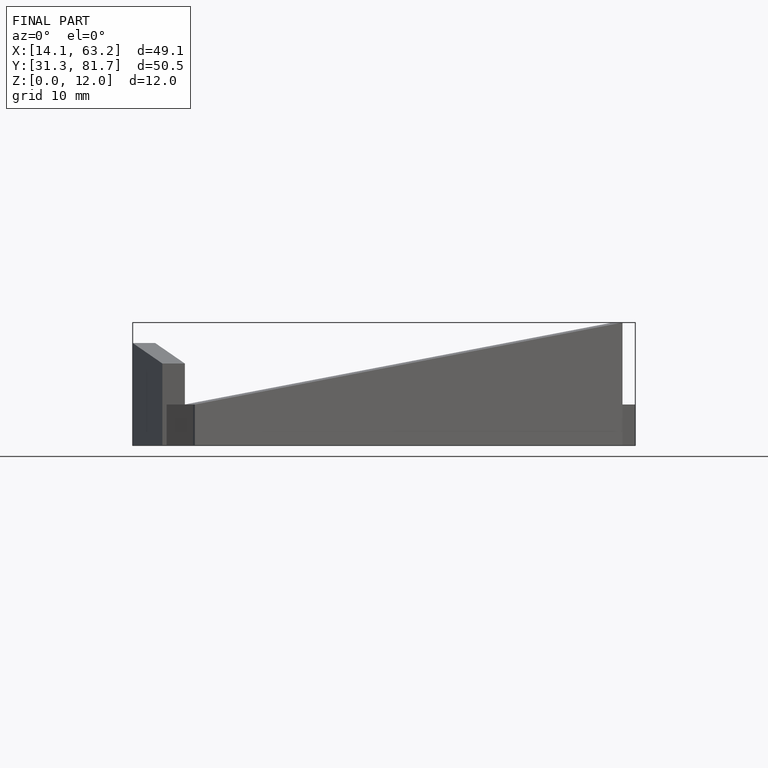
[diagram: finished part — front view with bounding-box wireframe]
